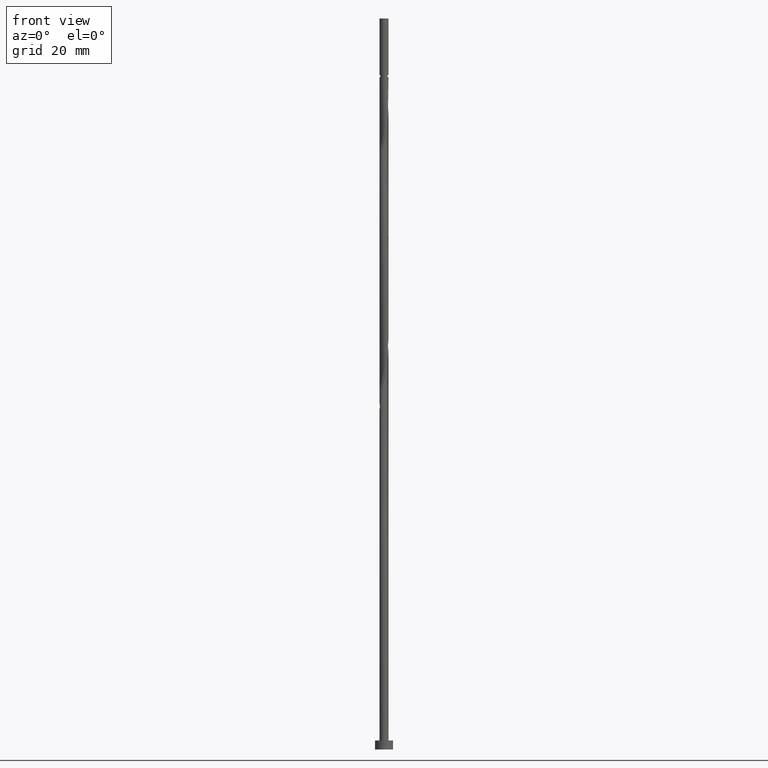
[diagram: clean part render]
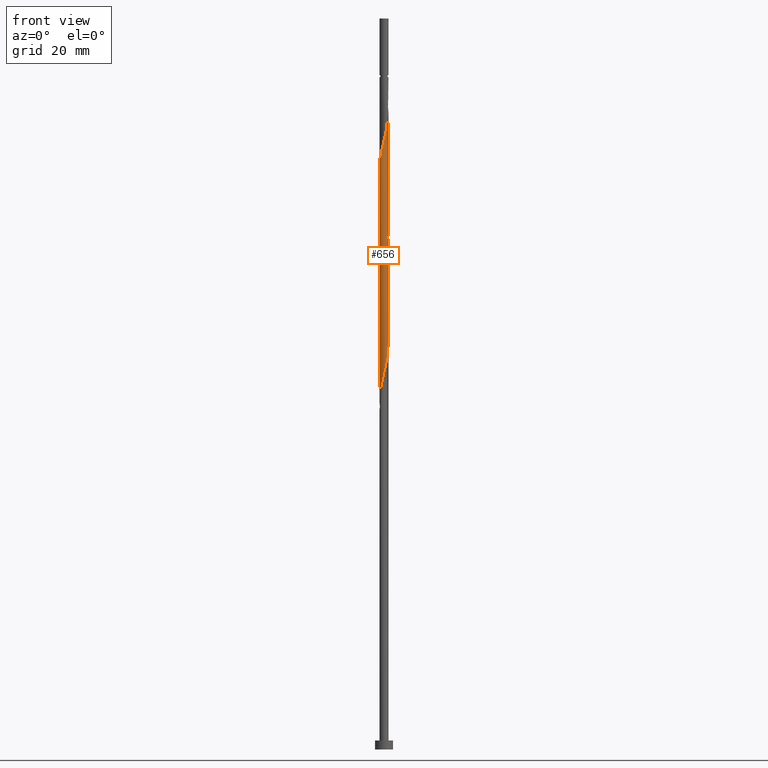
[diagram: same view with one face highlighted and labeled with its STEP entity id]
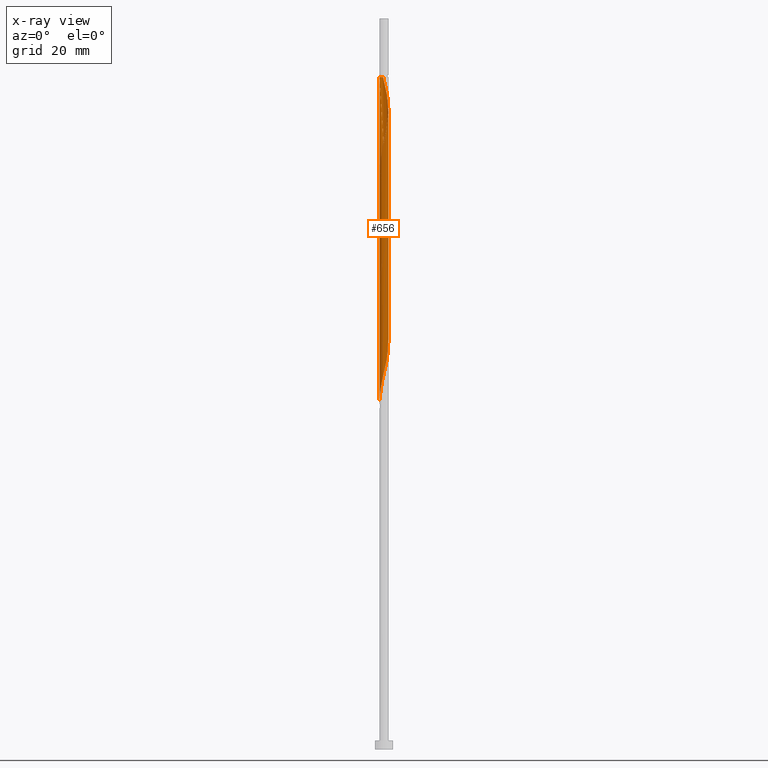
[diagram: x-ray of the same camera — body ghosted, the highlighted face saturated]
A machine part, front view. The second image highlights one B-rep face of the part: STEP entity #656.
The next image is the same camera in x-ray: the body ghosted, the highlighted face saturated — about 0% of this face is hidden behind the body in this view.
In plain terms, the highlighted cylindrical surface (bore or boss wall) has radius 1 mm, axis along (-0, -0, -1).
Its self-contained STEP definition (entity closure, byte-faithful):
#2 = VECTOR ( 'NONE', #1118, 1000.000000000000000 ) ;
#13 = DIRECTION ( 'NONE',  ( -0.000000000000000000, -0.000000000000000000, -1.000000000000000000 ) ) ;
#21 = CARTESIAN_POINT ( 'NONE',  ( -0.6103189422011747745, 0.7921557856826154653, 126.9057819410578674 ) ) ;
#37 = CARTESIAN_POINT ( 'NONE',  ( 0.3399002155364024280, 0.9513884807492757334, 122.6633576986336465 ) ) ;
#41 = CARTESIAN_POINT ( 'NONE',  ( 0.9415987439861391861, -0.3661475155560037220, 140.8451758804517624 ) ) ;
#43 = VERTEX_POINT ( 'NONE', #875 ) ;
#47 = CARTESIAN_POINT ( 'NONE',  ( 0.4964241347574807617, 0.8799064019851177143, 146.9057819410578816 ) ) ;
#51 = CARTESIAN_POINT ( 'NONE',  ( 0.7242137496448692868, -0.7044051693801137715, 87.51184254711849064 ) ) ;
#54 = CARTESIAN_POINT ( 'NONE',  ( 0.2284171888200493550, -0.9841228509061528129, 111.7542667895427400 ) ) ;
#56 = CARTESIAN_POINT ( 'NONE',  ( -0.08516121475689751585, -0.9963671850784392436, 135.3906304259063802 ) ) ;
#66 = CARTESIAN_POINT ( 'NONE',  ( 0.6103189422011745524, -0.7921557856826155763, 113.5724486077245245 ) ) ;
#68 = CARTESIAN_POINT ( 'NONE',  ( -0.7242137496448691758, -0.7044051693801139935, 132.3603273956033206 ) ) ;
#69 = CARTESIAN_POINT ( 'NONE',  ( -0.1989974874213283618, -0.9800000000000004263, 83.26941830469421291 ) ) ;
#74 = DIRECTION ( 'NONE',  ( -0.000000000000000000, -0.000000000000000000, -1.000000000000000000 ) ) ;
#84 = AXIS2_PLACEMENT_3D ( 'NONE', #1427, #110, #446 ) ;
#87 = CARTESIAN_POINT ( 'NONE',  ( 1.000000000000001332, 4.748790573360148585E-16, 117.4522061173284868 ) ) ;
#103 = ORIENTED_EDGE ( 'NONE', *, *, #557, .T. ) ;
#110 = DIRECTION ( 'NONE',  ( -0.000000000000000000, -0.000000000000000000, -1.000000000000000000 ) ) ;
#151 = CARTESIAN_POINT ( 'NONE',  ( -0.4964241347574810947, -0.8799064019851177143, 133.5724486077245672 ) ) ;
#155 = CARTESIAN_POINT ( 'NONE',  ( 0.9741058992719023868, 0.2260922311882499480, 118.4209334562093829 ) ) ;
#161 = CARTESIAN_POINT ( 'NONE',  ( 0.6103189422011752185, 0.7921557856826161315, 146.2997213349973151 ) ) ;
#169 =( BOUNDED_CURVE ( )  B_SPLINE_CURVE ( 2, ( #1325, #998, #615, #395, #251, #1471, #881, #1237, #21, #1313, #629, #1219, #1108, #857, #1212, #37, #1332, #605, #278, #730, #975, #241, #155, #370, #1085 ),
 .UNSPECIFIED., .F., .T. ) 
 B_SPLINE_CURVE_WITH_KNOTS ( ( 3, 2, 2, 2, 2, 2, 2, 2, 2, 2, 2, 2, 3 ),
 ( 0.4295252162417510511, 0.4318181818181818232, 0.4431818181818181768, 0.4545454545454545303, 0.4659090909090908839, 0.4772727272727272929, 0.4886363636363636465, 0.5000000000000000000, 0.5113636363636363535, 0.5227272727272727071, 0.5340909090909090606, 0.5454545454545454142, 0.5545252162417509956 ),
 .UNSPECIFIED. ) 
 CURVE ( )  GEOMETRIC_REPRESENTATION_ITEM ( )  RATIONAL_B_SPLINE_CURVE ( ( 0.9061101570135532413, 0.9072237824201354606, 0.9090909090909131685, 0.8998376744372155178, 0.9090909090909131685, 0.8998376744372155178, 0.9090909090909131685, 0.8998376744372155178, 0.9090909090909131685, 0.8998376744372155178, 0.9090909090909131685, 0.8998376744372155178, 0.9090909090909131685, 0.8998376744372155178, 0.9090909090909131685, 0.8998376744372155178, 0.9090909090909131685, 0.8998376744372155178, 0.9090909090909131685, 0.8998376744372155178, 0.9090909090909131685, 0.8998376744372155178, 0.9090909090909131685, 0.9017048011079932257, 0.9061101570135532413 ) ) 
 REPRESENTATION_ITEM ( '' )  );
#186 = CARTESIAN_POINT ( 'NONE',  ( -0.3624206617887649751, 0.9320146264456348195, 99.02699406227003465 ) ) ;
#237 = CARTESIAN_POINT ( 'NONE',  ( 1.006613054557666365, 0.08603694682049661813, 91.14820618348214509 ) ) ;
#241 = CARTESIAN_POINT ( 'NONE',  ( 0.9415987439861388530, 0.3661475155560033889, 119.0269940622700062 ) ) ;
#251 = CARTESIAN_POINT ( 'NONE',  ( -0.9417047178041579869, 0.3364405214378813347, 129.3300243653003463 ) ) ;
#274 = CARTESIAN_POINT ( 'NONE',  ( 0.05809475930625430939, -1.008611519250725896, 135.9966910319669466 ) ) ;
#277 = ORIENTED_EDGE ( 'NONE', *, *, #536, .F. ) ;
#278 = CARTESIAN_POINT ( 'NONE',  ( 0.6972353404242066510, 0.7168422979034811959, 120.8451758804518477 ) ) ;
#280 = CARTESIAN_POINT ( 'NONE',  ( 0.3624206617887649751, -0.9320146264456348195, 85.69366072893666342 ) ) ;
#284 = CARTESIAN_POINT ( 'NONE',  ( -0.8087728116229551123, -0.5881211942954477356, 131.7542667895427257 ) ) ;
#292 = CARTESIAN_POINT ( 'NONE',  ( 0.9417047178041579869, -0.3364405214378814457, 115.9966910319669608 ) ) ;
#296 = CARTESIAN_POINT ( 'NONE',  ( -0.8933318736010404937, 0.4718372192107812002, 102.0572970925730516 ) ) ;
#300 = CARTESIAN_POINT ( 'NONE',  ( -0.2284171888200492995, -0.9841228509061530350, 134.7845698198457569 ) ) ;
#307 = CARTESIAN_POINT ( 'NONE',  ( -0.9983453082824708114, 0.05750343842224257124, 103.8754789107548362 ) ) ;
#320 = EDGE_CURVE ( 'NONE', #1210, #1236, #1147, .T. ) ;
#326 = VERTEX_POINT ( 'NONE', #1002 ) ;
#343 = DIRECTION ( 'NONE',  ( -1.000000000000000000, 0.000000000000000000, 0.000000000000000000 ) ) ;
#370 = CARTESIAN_POINT ( 'NONE',  ( 1.000000000000001332, 0.1145289273851223394, 117.9381660702997863 ) ) ;
#371 = EDGE_CURVE ( 'NONE', #1236, #326, #1498, .T. ) ;
#394 = EDGE_CURVE ( 'NONE', #43, #1228, #1349, .T. ) ;
#395 = CARTESIAN_POINT ( 'NONE',  ( -0.9900775620072762573, 0.2010438236649818855, 129.9360849713609412 ) ) ;
#402 = CARTESIAN_POINT ( 'NONE',  ( 0.9983453082824716995, 0.05750343842224230062, 142.6633576986336323 ) ) ;
#409 = CARTESIAN_POINT ( 'NONE',  ( -0.6972353404242070951, -0.7168422979034808629, 80.84517588045181924 ) ) ;
#412 = CARTESIAN_POINT ( 'NONE',  ( -0.9900775620072762573, 0.2010438236649818855, 103.2694183046942555 ) ) ;
#420 = CARTESIAN_POINT ( 'NONE',  ( -0.9417047178041579869, 0.3364405214378813347, 102.6633576986336038 ) ) ;
#426 = CARTESIAN_POINT ( 'NONE',  ( -0.4670345966523050119, -0.8842390432059766825, 82.05729709257305160 ) ) ;
#431 = CARTESIAN_POINT ( 'NONE',  ( -0.6103189422011747745, 0.7921557856826154653, 100.2391152743911960 ) ) ;
#442 = CARTESIAN_POINT ( 'NONE',  ( -0.4670345966523050119, -0.8842390432059766825, 108.7239637592396804 ) ) ;
#446 = DIRECTION ( 'NONE',  ( -1.000000000000000000, 0.000000000000000000, 0.000000000000000000 ) ) ;
#503 = CARTESIAN_POINT ( 'NONE',  ( 0.9417047178041579869, -0.3364405214378814457, 89.33002436530030366 ) ) ;
#509 = CARTESIAN_POINT ( 'NONE',  ( -1.000000000000001776, -0.02877552652382714057, 129.2087284967782637 ) ) ;
#515 = CARTESIAN_POINT ( 'NONE',  ( 1.006613054557666587, -0.08603694682049706222, 142.0572970925730090 ) ) ;
#518 = CARTESIAN_POINT ( 'NONE',  ( -0.1989974874213462364, 0.9800000000002775380, 149.9360849713608559 ) ) ;
#523 = CARTESIAN_POINT ( 'NONE',  ( -1.006613054557666365, -0.08603694682049695119, 104.4815395168154595 ) ) ;
#527 = VERTEX_POINT ( 'NONE', #518 ) ;
#529 = CARTESIAN_POINT ( 'NONE',  ( -0.05809475930625460083, -1.008611519250725452, 83.87547891075486461 ) ) ;
#531 = CARTESIAN_POINT ( 'NONE',  ( 0.9900775620072762573, -0.2010438236649819965, 116.6027516380276126 ) ) ;
#533 = CARTESIAN_POINT ( 'NONE',  ( 0.7242137496448697309, 0.7044051693801136604, 145.6936607289366634 ) ) ;
#536 = EDGE_CURVE ( 'NONE', #1228, #1236, #169, .T. ) ;
#541 = CARTESIAN_POINT ( 'NONE',  ( -0.9415987439861388530, -0.3661475155560038330, 105.6936607289366634 ) ) ;
#549 = CARTESIAN_POINT ( 'NONE',  ( 0.7242137496448692868, -0.7044051693801137715, 114.1785092137851620 ) ) ;
#556 = CARTESIAN_POINT ( 'NONE',  ( 0.8087728116229545572, -0.5881211942954474026, 114.7845698198457427 ) ) ;
#557 = EDGE_CURVE ( 'NONE', #1448, #326, #1093, .T. ) ;
#574 = CYLINDRICAL_SURFACE ( 'NONE', #84, 1.000000000000000000 ) ;
#587 = DIRECTION ( 'NONE',  ( -0.000000000000000000, -0.000000000000000000, -1.000000000000000000 ) ) ;
#591 = CARTESIAN_POINT ( 'NONE',  ( 0.05809475930625434409, 1.008611519250725230, 97.20881224408815058 ) ) ;
#605 = CARTESIAN_POINT ( 'NONE',  ( 0.5941689777682082063, 0.8170896056626779647, 121.4512364865124141 ) ) ;
#606 = CARTESIAN_POINT ( 'NONE',  ( 0.8003017030802059839, 0.6165949901442843162, 93.57244860772455297 ) ) ;
#615 = CARTESIAN_POINT ( 'NONE',  ( -0.9983453082824708114, 0.05750343842224257124, 130.5421455774215076 ) ) ;
#629 = CARTESIAN_POINT ( 'NONE',  ( -0.3624206617887649751, 0.9320146264456348195, 125.6936607289366776 ) ) ;
#630 = CARTESIAN_POINT ( 'NONE',  ( 0.8933318736010404937, -0.4718372192107812002, 88.72396375923970879 ) ) ;
#636 = CARTESIAN_POINT ( 'NONE',  ( 0.8003017030802062060, -0.6165949901442845382, 139.6330546683306011 ) ) ;
#642 = CARTESIAN_POINT ( 'NONE',  ( 0.8933318736010404937, -0.4718372192107812002, 115.3906304259063944 ) ) ;
#645 = CARTESIAN_POINT ( 'NONE',  ( 0.2284171888200494660, 0.9841228509061530350, 148.1179031531790713 ) ) ;
#653 = CARTESIAN_POINT ( 'NONE',  ( 1.000000000000001332, 4.748790573360148585E-16, 117.4522061173284868 ) ) ;
#656 = ADVANCED_FACE ( 'NONE', ( #1195 ), #574, .T. ) ;
#668 = CARTESIAN_POINT ( 'NONE',  ( 0.9983453082824708114, -0.05750343842224268920, 117.2088122440881648 ) ) ;
#672 = EDGE_CURVE ( 'NONE', #43, #527, #1281, .T. ) ;
#705 = ORIENTED_EDGE ( 'NONE', *, *, #997, .F. ) ;
#713 = EDGE_LOOP ( 'NONE', ( #1433, #991, #705, #103, #1124, #1330, #1324, #277 ) ) ;
#717 = CARTESIAN_POINT ( 'NONE',  ( 0.8087728116229545572, -0.5881211942954474026, 88.11790315317905709 ) ) ;
#725 = CARTESIAN_POINT ( 'NONE',  ( 0.4670345966523051229, 0.8842390432059766825, 95.39063042590639441 ) ) ;
#730 = CARTESIAN_POINT ( 'NONE',  ( 0.8003017030802059839, 0.6165949901442843162, 120.2391152743912244 ) ) ;
#740 = CARTESIAN_POINT ( 'NONE',  ( -1.000000000000000000, 0.000000000000000000, 163.0000000000000000 ) ) ;
#741 = CARTESIAN_POINT ( 'NONE',  ( 0.9983453082824708114, -0.05750343842224268920, 90.54214557742153602 ) ) ;
#752 = CARTESIAN_POINT ( 'NONE',  ( 0.1989974874213282230, -0.9800000000000010925, 136.6027516380275699 ) ) ;
#756 = CARTESIAN_POINT ( 'NONE',  ( -1.000000000000001332, -0.1145289273851226586, 77.93816607029980048 ) ) ;
#761 = CARTESIAN_POINT ( 'NONE',  ( 0.8933318736010409378, 0.4718372192107809782, 144.4815395168154453 ) ) ;
#773 = CARTESIAN_POINT ( 'NONE',  ( -0.5941689777682080953, -0.8170896056626780757, 81.45123648651242831 ) ) ;
#778 = CARTESIAN_POINT ( 'NONE',  ( 0.9417047178041585420, 0.3364405214378812237, 143.8754789107548220 ) ) ;
#783 = CARTESIAN_POINT ( 'NONE',  ( -0.9415987439861388530, -0.3661475155560038330, 79.02699406227002044 ) ) ;
#787 = CARTESIAN_POINT ( 'NONE',  ( 0.4964241347574807617, -0.8799064019851173812, 112.9663880016639581 ) ) ;
#796 = CARTESIAN_POINT ( 'NONE',  ( 1.000000000000000000, 1.224646799147353207E-16, 163.0000000000000000 ) ) ;
#805 = CARTESIAN_POINT ( 'NONE',  ( -1.000000000000001332, -6.805353420090921159E-16, 130.7855394506618154 ) ) ;
#813 = CARTESIAN_POINT ( 'NONE',  ( 0.000000000000000000, 0.000000000000000000, 149.9360849713609127 ) ) ;
#833 = CARTESIAN_POINT ( 'NONE',  ( 0.6972353404242066510, 0.7168422979034811959, 94.17850921378516205 ) ) ;
#857 = CARTESIAN_POINT ( 'NONE',  ( 0.05809475930625434409, 1.008611519250725230, 123.8754789107548788 ) ) ;
#863 = CARTESIAN_POINT ( 'NONE',  ( 0.9415987439861388530, 0.3661475155560033889, 92.36032739560330640 ) ) ;
#875 = CARTESIAN_POINT ( 'NONE',  ( -0.9999999999999937828, 0.000000000000000000, 149.9360849713609127 ) ) ;
#876 = CARTESIAN_POINT ( 'NONE',  ( -0.6103189422011752185, -0.7921557856826156874, 132.9663880016639723 ) ) ;
#881 = CARTESIAN_POINT ( 'NONE',  ( -0.8087728116229545572, 0.5881211942954474026, 128.1179031531790997 ) ) ;
#886 = CARTESIAN_POINT ( 'NONE',  ( 0.9741058992719027199, -0.2260922311882504754, 141.4512364865124425 ) ) ;
#892 = VECTOR ( 'NONE', #13, 1000.000000000000000 ) ;
#896 = CARTESIAN_POINT ( 'NONE',  ( 0.08516121475689711340, -0.9963671850784390216, 111.1482061834821309 ) ) ;
#900 = CARTESIAN_POINT ( 'NONE',  ( -1.000000000000001332, -6.805353420090921159E-16, 77.45220611732848681 ) ) ;
#904 = CARTESIAN_POINT ( 'NONE',  ( -0.9900775620072765904, -0.2010438236649818300, 129.9360849713609127 ) ) ;
#906 = CARTESIAN_POINT ( 'NONE',  ( -0.8003017030802062060, -0.6165949901442839831, 80.23911527439122437 ) ) ;
#909 = CARTESIAN_POINT ( 'NONE',  ( 1.000000000000001554, -0.02877552652382299112, 117.3301081126102758 ) ) ;
#924 = CARTESIAN_POINT ( 'NONE',  ( -0.6972353404242070951, -0.7168422979034808629, 107.5118425471184906 ) ) ;
#941 = CARTESIAN_POINT ( 'NONE',  ( 1.000000000000000000, 1.224646799147353207E-16, 149.9360849713609127 ) ) ;
#970 = CARTESIAN_POINT ( 'NONE',  ( 0.8709502235331720854, 0.4913712528501442689, 92.96638800166392969 ) ) ;
#975 = CARTESIAN_POINT ( 'NONE',  ( 0.8709502235331720854, 0.4913712528501442689, 119.6330546683306153 ) ) ;
#988 = CARTESIAN_POINT ( 'NONE',  ( -0.9983453082824716995, -0.05750343842224243940, 129.3300243653003463 ) ) ;
#991 = ORIENTED_EDGE ( 'NONE', *, *, #672, .T. ) ;
#994 = CARTESIAN_POINT ( 'NONE',  ( 0.6972353404242070951, -0.7168422979034815290, 139.0269940622700062 ) ) ;
#997 = EDGE_CURVE ( 'NONE', #1448, #527, #1088, .T. ) ;
#998 = CARTESIAN_POINT ( 'NONE',  ( -1.000000000000001554, 0.02877552652382282458, 130.6634414459436186 ) ) ;
#1002 = CARTESIAN_POINT ( 'NONE',  ( -1.000000000000001332, -6.805353420090921159E-16, 77.45220611732848681 ) ) ;
#1003 = CARTESIAN_POINT ( 'NONE',  ( -0.1989974874213462364, 0.9800000000002775380, 149.9360849713608559 ) ) ;
#1005 = CARTESIAN_POINT ( 'NONE',  ( 0.08516121475689711340, -0.9963671850784390216, 84.48153951681541685 ) ) ;
#1009 = CARTESIAN_POINT ( 'NONE',  ( -0.1989974874213283618, -0.9800000000000004263, 109.9360849713608701 ) ) ;
#1011 = CARTESIAN_POINT ( 'NONE',  ( -0.05809475930625415674, 1.008611519250725896, 149.3300243653003179 ) ) ;
#1012 = CARTESIAN_POINT ( 'NONE',  ( 0.6103189422011745524, -0.7921557856826155763, 86.90578194105786736 ) ) ;
#1015 = CARTESIAN_POINT ( 'NONE',  ( -0.8087728116229545572, 0.5881211942954474026, 101.4512364865124283 ) ) ;
#1032 = CARTESIAN_POINT ( 'NONE',  ( 0.3624206617887649751, -0.9320146264456348195, 112.3603273956033348 ) ) ;
#1085 = CARTESIAN_POINT ( 'NONE',  ( 1.000000000000001332, 4.748790573360148585E-16, 117.4522061173284868 ) ) ;
#1088 =( BOUNDED_CURVE ( )  B_SPLINE_CURVE ( 2, ( #1269, #509, #988, #904, #1130, #1461, #284, #68, #876, #151, #1370, #300, #56, #274, #752, #1468, #1234, #1253, #994, #636, #1115, #41, #886, #515, #402, #1354, #778, #761, #1243, #533, #161, #47, #1259, #645, #1121, #1011, #1003 ),
 .UNSPECIFIED., .F., .T. ) 
 B_SPLINE_CURVE_WITH_KNOTS ( ( 3, 2, 2, 2, 2, 2, 2, 2, 2, 2, 2, 2, 2, 2, 2, 2, 2, 2, 3 ),
 ( 0.5545252162417514397, 0.5568181818181818787, 0.5681818181818181213, 0.5795454545454545858, 0.5909090909090908283, 0.6022727272727272929, 0.6136363636363636465, 0.6250000000000000000, 0.6363636363636363535, 0.6477272727272727071, 0.6590909090909091717, 0.6704545454545454142, 0.6818181818181818787, 0.6931818181818181213, 0.7045454545454545858, 0.7159090909090908283, 0.7272727272727272929, 0.7386363636363636465, 0.7500000000000000000 ),
 .UNSPECIFIED. ) 
 CURVE ( )  GEOMETRIC_REPRESENTATION_ITEM ( )  RATIONAL_B_SPLINE_CURVE ( ( 0.9061101570135656758, 0.9072237824201478951, 0.9090909090909253809, 0.8998376744372276193, 0.9090909090909253809, 0.8998376744372276193, 0.9090909090909253809, 0.8998376744372276193, 0.9090909090909253809, 0.8998376744372276193, 0.9090909090909253809, 0.8998376744372276193, 0.9090909090909253809, 0.8998376744372276193, 0.9090909090909253809, 0.8998376744372276193, 0.9090909090909253809, 0.8998376744372276193, 0.9090909090909253809, 0.8998376744372276193, 0.9090909090909253809, 0.8998376744372276193, 0.9090909090909253809, 0.8998376744372276193, 0.9090909090909253809, 0.8998376744372276193, 0.9090909090909253809, 0.8998376744372276193, 0.9090909090909253809, 0.8998376744372276193, 0.9090909090909253809, 0.8998376744372276193, 0.9090909090909253809, 0.8998376744372276193, 0.9090909090909253809, 0.8998376744372276193, 0.9090909090909253809 ) ) 
 REPRESENTATION_ITEM ( '' )  );
#1093 = LINE ( 'NONE', #740, #892 ) ;
#1094 = CARTESIAN_POINT ( 'NONE',  ( 0.3399002155364024280, 0.9513884807492757334, 95.99669103196698927 ) ) ;
#1108 = CARTESIAN_POINT ( 'NONE',  ( -0.08516121475689737708, 0.9963671850784390216, 124.4815395168154737 ) ) ;
#1115 = CARTESIAN_POINT ( 'NONE',  ( 0.8709502235331724185, -0.4913712528501443799, 140.2391152743912244 ) ) ;
#1118 = DIRECTION ( 'NONE',  ( -0.000000000000000000, -0.000000000000000000, -1.000000000000000000 ) ) ;
#1121 = CARTESIAN_POINT ( 'NONE',  ( 0.08516121475689758524, 0.9963671850784392436, 148.7239637592396946 ) ) ;
#1124 = ORIENTED_EDGE ( 'NONE', *, *, #371, .F. ) ;
#1127 = CARTESIAN_POINT ( 'NONE',  ( -0.8709502235331721964, -0.4913712528501439358, 79.63305466833060109 ) ) ;
#1130 = CARTESIAN_POINT ( 'NONE',  ( -0.9417047178041585420, -0.3364405214378813902, 130.5421455774215360 ) ) ;
#1136 = CARTESIAN_POINT ( 'NONE',  ( 0.2284171888200493550, -0.9841228509061528129, 85.08760012287606855 ) ) ;
#1147 = LINE ( 'NONE', #796, #1160 ) ;
#1160 = VECTOR ( 'NONE', #74, 1000.000000000000000 ) ;
#1177 = CARTESIAN_POINT ( 'NONE',  ( -0.08516121475689737708, 0.9963671850784390216, 97.81487285014878807 ) ) ;
#1195 = FACE_OUTER_BOUND ( 'NONE', #713, .T. ) ;
#1197 = CARTESIAN_POINT ( 'NONE',  ( 0.1989974874213285005, 0.9800000000000004263, 96.60275163802755571 ) ) ;
#1204 = CARTESIAN_POINT ( 'NONE',  ( 0.5941689777682082063, 0.8170896056626779647, 94.78456981984577112 ) ) ;
#1210 = VERTEX_POINT ( 'NONE', #941 ) ;
#1212 = CARTESIAN_POINT ( 'NONE',  ( 0.1989974874213285005, 0.9800000000000004263, 123.2694183046942129 ) ) ;
#1219 = CARTESIAN_POINT ( 'NONE',  ( -0.2284171888200492717, 0.9841228509061528129, 125.0876001228761254 ) ) ;
#1221 = CARTESIAN_POINT ( 'NONE',  ( 0.9900775620072762573, -0.2010438236649819965, 89.93608497136094115 ) ) ;
#1228 = VERTEX_POINT ( 'NONE', #805 ) ;
#1234 = CARTESIAN_POINT ( 'NONE',  ( 0.4670345966523050119, -0.8842390432059774596, 137.8148728501487881 ) ) ;
#1236 = VERTEX_POINT ( 'NONE', #87 ) ;
#1237 = CARTESIAN_POINT ( 'NONE',  ( -0.7242137496448689538, 0.7044051693801141045, 127.5118425471185049 ) ) ;
#1238 = CARTESIAN_POINT ( 'NONE',  ( -1.000000000000000000, 0.000000000000000000, 163.0000000000000000 ) ) ;
#1242 = CARTESIAN_POINT ( 'NONE',  ( -0.9741058992719023868, -0.2260922311882502533, 105.0876001228760543 ) ) ;
#1243 = CARTESIAN_POINT ( 'NONE',  ( 0.8087728116229552233, 0.5881211942954475136, 145.0876001228760401 ) ) ;
#1248 = CARTESIAN_POINT ( 'NONE',  ( -0.3399002155364022615, -0.9513884807492757334, 82.66335769863367489 ) ) ;
#1253 = CARTESIAN_POINT ( 'NONE',  ( 0.5941689777682083173, -0.8170896056626782977, 138.4209334562094114 ) ) ;
#1259 = CARTESIAN_POINT ( 'NONE',  ( 0.3624206617887651416, 0.9320146264456353746, 147.5118425471185617 ) ) ;
#1269 = CARTESIAN_POINT ( 'NONE',  ( -1.000000000000001998, -5.683591867328604570E-16, 129.0866304920600385 ) ) ;
#1281 = CIRCLE ( 'NONE', #1480, 0.9999999999999937828 ) ;
#1313 = CARTESIAN_POINT ( 'NONE',  ( -0.4964241347574808727, 0.8799064019851173812, 126.2997213349973151 ) ) ;
#1324 = ORIENTED_EDGE ( 'NONE', *, *, #320, .T. ) ;
#1325 = CARTESIAN_POINT ( 'NONE',  ( -1.000000000000001332, -6.805353420090921159E-16, 130.7855394506618154 ) ) ;
#1330 = ORIENTED_EDGE ( 'NONE', *, *, #320, .F. ) ;
#1332 = CARTESIAN_POINT ( 'NONE',  ( 0.4670345966523051229, 0.8842390432059766825, 122.0572970925730090 ) ) ;
#1333 = CARTESIAN_POINT ( 'NONE',  ( 0.9741058992719023868, 0.2260922311882499480, 91.75426678954271154 ) ) ;
#1349 = LINE ( 'NONE', #1238, #2 ) ;
#1354 = CARTESIAN_POINT ( 'NONE',  ( 0.9900775620072765904, 0.2010438236649816635, 143.2694183046942555 ) ) ;
#1369 = CARTESIAN_POINT ( 'NONE',  ( -0.5941689777682080953, -0.8170896056626780757, 108.1179031531790997 ) ) ;
#1370 = CARTESIAN_POINT ( 'NONE',  ( -0.3624206617887654192, -0.9320146264456353746, 134.1785092137852189 ) ) ;
#1377 = CARTESIAN_POINT ( 'NONE',  ( -0.4964241347574808727, 0.8799064019851173812, 99.63305466833064372 ) ) ;
#1392 = CARTESIAN_POINT ( 'NONE',  ( -0.8709502235331721964, -0.4913712528501439358, 106.2997213349972583 ) ) ;
#1427 = CARTESIAN_POINT ( 'NONE',  ( 0.000000000000000000, 0.000000000000000000, 163.0000000000000000 ) ) ;
#1433 = ORIENTED_EDGE ( 'NONE', *, *, #394, .F. ) ;
#1448 = VERTEX_POINT ( 'NONE', #1475 ) ;
#1461 = CARTESIAN_POINT ( 'NONE',  ( -0.8933318736010408267, -0.4718372192107813112, 131.1482061834821025 ) ) ;
#1468 = CARTESIAN_POINT ( 'NONE',  ( 0.3399002155364020950, -0.9513884807492761775, 137.2088122440881932 ) ) ;
#1471 = CARTESIAN_POINT ( 'NONE',  ( -0.8933318736010404937, 0.4718372192107812002, 128.7239637592397230 ) ) ;
#1474 = CARTESIAN_POINT ( 'NONE',  ( 0.4964241347574807617, -0.8799064019851173812, 86.29972133499728670 ) ) ;
#1475 = CARTESIAN_POINT ( 'NONE',  ( -1.000000000000001998, -5.683591867328604570E-16, 129.0866304920600385 ) ) ;
#1476 = CARTESIAN_POINT ( 'NONE',  ( -0.8003017030802062060, -0.6165949901442839831, 106.9057819410579100 ) ) ;
#1480 = AXIS2_PLACEMENT_3D ( 'NONE', #813, #587, #343 ) ;
#1488 = CARTESIAN_POINT ( 'NONE',  ( -0.3399002155364022615, -0.9513884807492757334, 109.3300243653003321 ) ) ;
#1491 = CARTESIAN_POINT ( 'NONE',  ( -0.9741058992719023868, -0.2260922311882502533, 78.42093345620936873 ) ) ;
#1494 = CARTESIAN_POINT ( 'NONE',  ( -0.7242137496448689538, 0.7044051693801141045, 100.8451758804518335 ) ) ;
#1498 =( BOUNDED_CURVE ( )  B_SPLINE_CURVE ( 2, ( #653, #909, #668, #531, #292, #642, #556, #549, #66, #787, #1032, #54, #896, #1507, #1009, #1488, #442, #1369, #924, #1476, #1392, #541, #1242, #523, #307, #412, #420, #296, #1015, #1494, #431, #1377, #186, #1522, #1177, #591, #1197, #1094, #725, #1204, #833, #606, #970, #863, #1333, #237, #741, #1221, #503, #630, #717, #51, #1012, #1474, #280, #1136, #1005, #529, #69, #1248, #426, #773, #409, #906, #1127, #783, #1491, #756, #900 ),
 .UNSPECIFIED., .F., .T. ) 
 B_SPLINE_CURVE_WITH_KNOTS ( ( 3, 2, 2, 2, 2, 2, 2, 2, 2, 2, 2, 2, 2, 2, 2, 2, 2, 2, 2, 2, 2, 2, 2, 2, 2, 2, 2, 2, 2, 2, 2, 2, 2, 2, 3 ),
 ( 0.5545252162417509956, 0.5568181818181817677, 0.5681818181818182323, 0.5795454545454545858, 0.5909090909090909394, 0.6022727272727272929, 0.6136363636363636465, 0.6250000000000000000, 0.6363636363636363535, 0.6477272727272727071, 0.6590909090909090606, 0.6704545454545454142, 0.6818181818181817677, 0.6931818181818182323, 0.7045454545454545858, 0.7159090909090909394, 0.7272727272727272929, 0.7386363636363636465, 0.7500000000000000000, 0.7613636363636363535, 0.7727272727272727071, 0.7840909090909090606, 0.7954545454545454142, 0.8068181818181817677, 0.8181818181818182323, 0.8295454545454545858, 0.8409090909090909394, 0.8522727272727272929, 0.8636363636363636465, 0.8750000000000000000, 0.8863636363636363535, 0.8977272727272727071, 0.9090909090909090606, 0.9204545454545454142, 0.9295252162417509956 ),
 .UNSPECIFIED. ) 
 CURVE ( )  GEOMETRIC_REPRESENTATION_ITEM ( )  RATIONAL_B_SPLINE_CURVE ( ( 0.9061101570135532413, 0.9072237824201354606, 0.9090909090909131685, 0.8998376744372155178, 0.9090909090909131685, 0.8998376744372155178, 0.9090909090909131685, 0.8998376744372155178, 0.9090909090909131685, 0.8998376744372155178, 0.9090909090909131685, 0.8998376744372155178, 0.9090909090909131685, 0.8998376744372155178, 0.9090909090909131685, 0.8998376744372155178, 0.9090909090909131685, 0.8998376744372155178, 0.9090909090909131685, 0.8998376744372155178, 0.9090909090909131685, 0.8998376744372155178, 0.9090909090909131685, 0.8998376744372155178, 0.9090909090909131685, 0.8998376744372155178, 0.9090909090909131685, 0.8998376744372155178, 0.9090909090909131685, 0.8998376744372155178, 0.9090909090909131685, 0.8998376744372155178, 0.9090909090909131685, 0.8998376744372155178, 0.9090909090909131685, 0.8998376744372155178, 0.9090909090909131685, 0.8998376744372155178, 0.9090909090909131685, 0.8998376744372155178, 0.9090909090909131685, 0.8998376744372155178, 0.9090909090909131685, 0.8998376744372155178, 0.9090909090909131685, 0.8998376744372155178, 0.9090909090909131685, 0.8998376744372155178, 0.9090909090909131685, 0.8998376744372155178, 0.9090909090909131685, 0.8998376744372155178, 0.9090909090909131685, 0.8998376744372155178, 0.9090909090909131685, 0.8998376744372155178, 0.9090909090909131685, 0.8998376744372155178, 0.9090909090909131685, 0.8998376744372155178, 0.9090909090909131685, 0.8998376744372155178, 0.9090909090909131685, 0.8998376744372155178, 0.9090909090909131685, 0.8998376744372155178, 0.9090909090909131685, 0.9017048011079932257, 0.9061101570135532413 ) ) 
 REPRESENTATION_ITEM ( '' )  );
#1507 = CARTESIAN_POINT ( 'NONE',  ( -0.05809475930625460083, -1.008611519250725452, 110.5421455774215360 ) ) ;
#1522 = CARTESIAN_POINT ( 'NONE',  ( -0.2284171888200492717, 0.9841228509061528129, 98.42093345620945399 ) ) ;